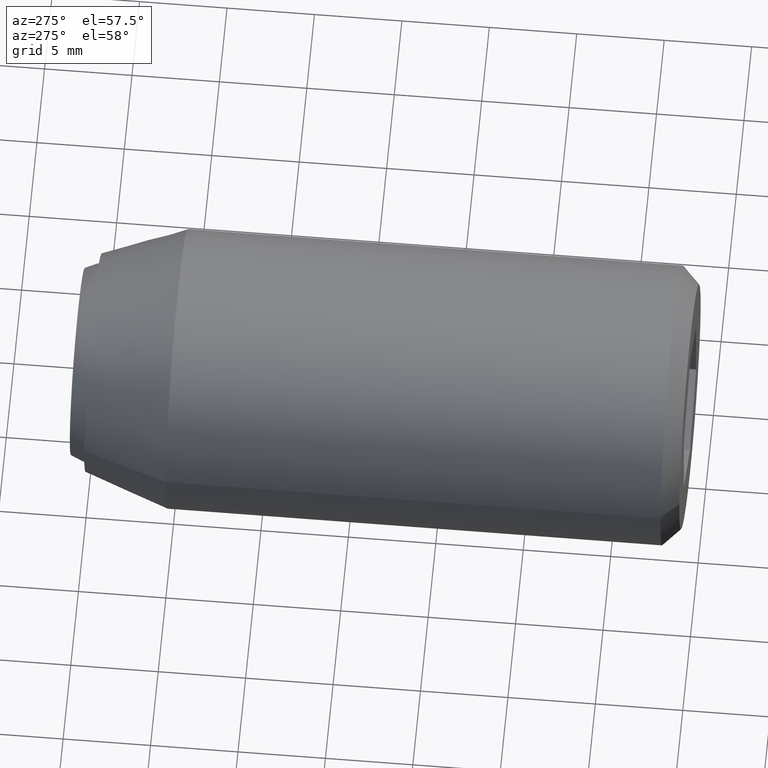
[diagram: clean part render]
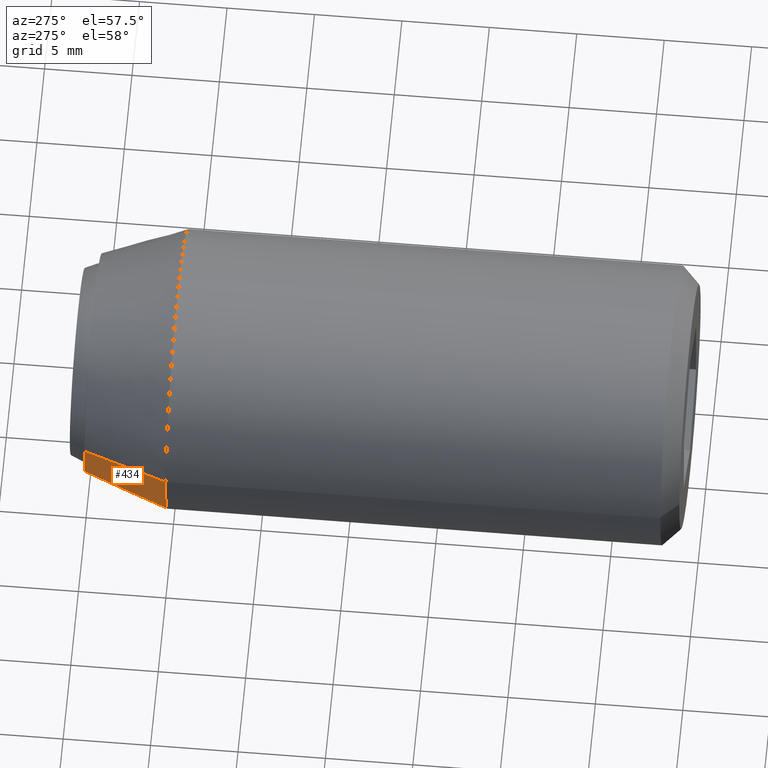
[diagram: same view with one face highlighted and labeled with its STEP entity id]
A machine part, auxiliary view. The second image highlights one B-rep face of the part: STEP entity #434.
In plain terms, the highlighted face is a freeform B-spline surface patch.
Its self-contained STEP definition (entity closure, byte-faithful):
#260=CARTESIAN_POINT('',(-5.068584831065254,-3.391263E-013,-3.656767398987356));
#261=VERTEX_POINT('',#260);
#294=CARTESIAN_POINT('',(-6.238341910631632,0.000001987883536,0.381550995179467));
#295=VERTEX_POINT('',#294);
#309=CARTESIAN_POINT('',(-7.985078436995666,-4.808085999013084,0.488387499100347));
#310=VERTEX_POINT('',#309);
#311=CARTESIAN_POINT('',(-6.238341910631632,0.000001987883536,0.381550995179467));
#312=CARTESIAN_POINT('',(-7.985078436995666,-4.808085999013084,0.488387499100347));
#313=QUASI_UNIFORM_CURVE('',1,(#311,#312),.UNSPECIFIED.,.F.,.U.);
#314=EDGE_CURVE('',#295,#310,#313,.T.);
#363=CARTESIAN_POINT('',(-6.487788583763864,-4.808086000000373,-4.680662270703309));
#364=VERTEX_POINT('',#363);
#378=CARTESIAN_POINT('',(-5.068584831065254,-3.391263E-013,-3.656767398987356));
#379=CARTESIAN_POINT('',(-6.487788583763864,-4.808086000000373,-4.680662270703309));
#380=QUASI_UNIFORM_CURVE('',1,(#378,#379),.UNSPECIFIED.,.F.,.U.);
#381=EDGE_CURVE('',#261,#364,#380,.T.);
#386=CARTESIAN_POINT('',(-6.194674092705709,0.120202150000000,0.378882498488205));
#387=CARTESIAN_POINT('',(-6.329993708723172,0.120202150000000,-1.833573666478589));
#388=CARTESIAN_POINT('',(-5.033104737249632,0.120202150000000,-3.631170027191690));
#389=CARTESIAN_POINT('',(-8.029838494741664,-4.931293203750000,0.491125961723621));
#390=CARTESIAN_POINT('',(-8.205246376662386,-4.931293203750000,-2.376767557048920));
#391=CARTESIAN_POINT('',(-6.524155679928798,-4.931293203749999,-4.706899576787980));
#399=(BOUNDED_SURFACE()B_SPLINE_SURFACE(2,1,((#386,#389),(#387,#390),(#388,#391)),.UNSPECIFIED.,.F.,.F.,.U.)B_SPLINE_SURFACE_WITH_KNOTS((3,3),(2,2),(0.0,5.850364563902502),(0.0,5.375689005745859),.UNSPECIFIED.)GEOMETRIC_REPRESENTATION_ITEM()RATIONAL_B_SPLINE_SURFACE(((1.0,1.0),(0.871126983722081,0.871126983722081),(0.855662221768731,0.855662221768731)))REPRESENTATION_ITEM('')SURFACE());
#400=CARTESIAN_POINT('',(-6.238341910631632,0.000001987883536,0.381550995179467));
#401=CARTESIAN_POINT('',(-6.249999308708107,0.000001902857312,0.190953558693370));
#402=CARTESIAN_POINT('',(-6.249999340213384,0.000001816135797,-0.000000040353817));
#403=CARTESIAN_POINT('',(-6.249999673364036,0.000000899104357,-2.019227386719627));
#404=CARTESIAN_POINT('',(-5.068584831065254,-3.391263E-013,-3.656767398987356));
#412=(BOUNDED_CURVE()B_SPLINE_CURVE(2,(#400,#401,#402,#403,#404),.UNSPECIFIED.,.F.,.U.)B_SPLINE_CURVE_WITH_KNOTS((3,2,3),(0.739333026763493,0.750000000000000,0.850743050382160),.UNSPECIFIED.)CURVE()GEOMETRIC_REPRESENTATION_ITEM()RATIONAL_B_SPLINE_CURVE((0.976072179955150,0.987502863495050,1.0,0.881972174801933,0.859068214727271))REPRESENTATION_ITEM(''));
#413=EDGE_CURVE('',#295,#261,#412,.T.);
#414=ORIENTED_EDGE('',*,*,#413,.T.);
#415=ORIENTED_EDGE('',*,*,#381,.T.);
#416=CARTESIAN_POINT('',(-7.985078436995666,-4.808085999013084,0.488387499100347));
#417=CARTESIAN_POINT('',(-8.0,-4.808085999999999,0.244421696664813));
#418=CARTESIAN_POINT('',(-8.0,-4.808085999999999,-1.291960E-015));
#419=CARTESIAN_POINT('',(-8.0,-4.808085999999999,-2.584611029430652));
#420=CARTESIAN_POINT('',(-6.487788583763864,-4.808086000000373,-4.680662270703309));
#428=(BOUNDED_CURVE()B_SPLINE_CURVE(2,(#416,#417,#418,#419,#420),.UNSPECIFIED.,.F.,.U.)B_SPLINE_CURVE_WITH_KNOTS((3,2,3),(0.739332979899622,0.750000000000000,0.850743050382138),.UNSPECIFIED.)CURVE()GEOMETRIC_REPRESENTATION_ITEM()RATIONAL_B_SPLINE_CURVE((0.976072079516917,0.987502808590609,1.0,0.881972174801960,0.859068214727282))REPRESENTATION_ITEM(''));
#429=EDGE_CURVE('',#310,#364,#428,.T.);
#430=ORIENTED_EDGE('',*,*,#429,.F.);
#431=ORIENTED_EDGE('',*,*,#314,.F.);
#432=EDGE_LOOP('',(#414,#415,#430,#431));
#433=FACE_OUTER_BOUND('',#432,.T.);
#434=ADVANCED_FACE('',(#433),#399,.T.);